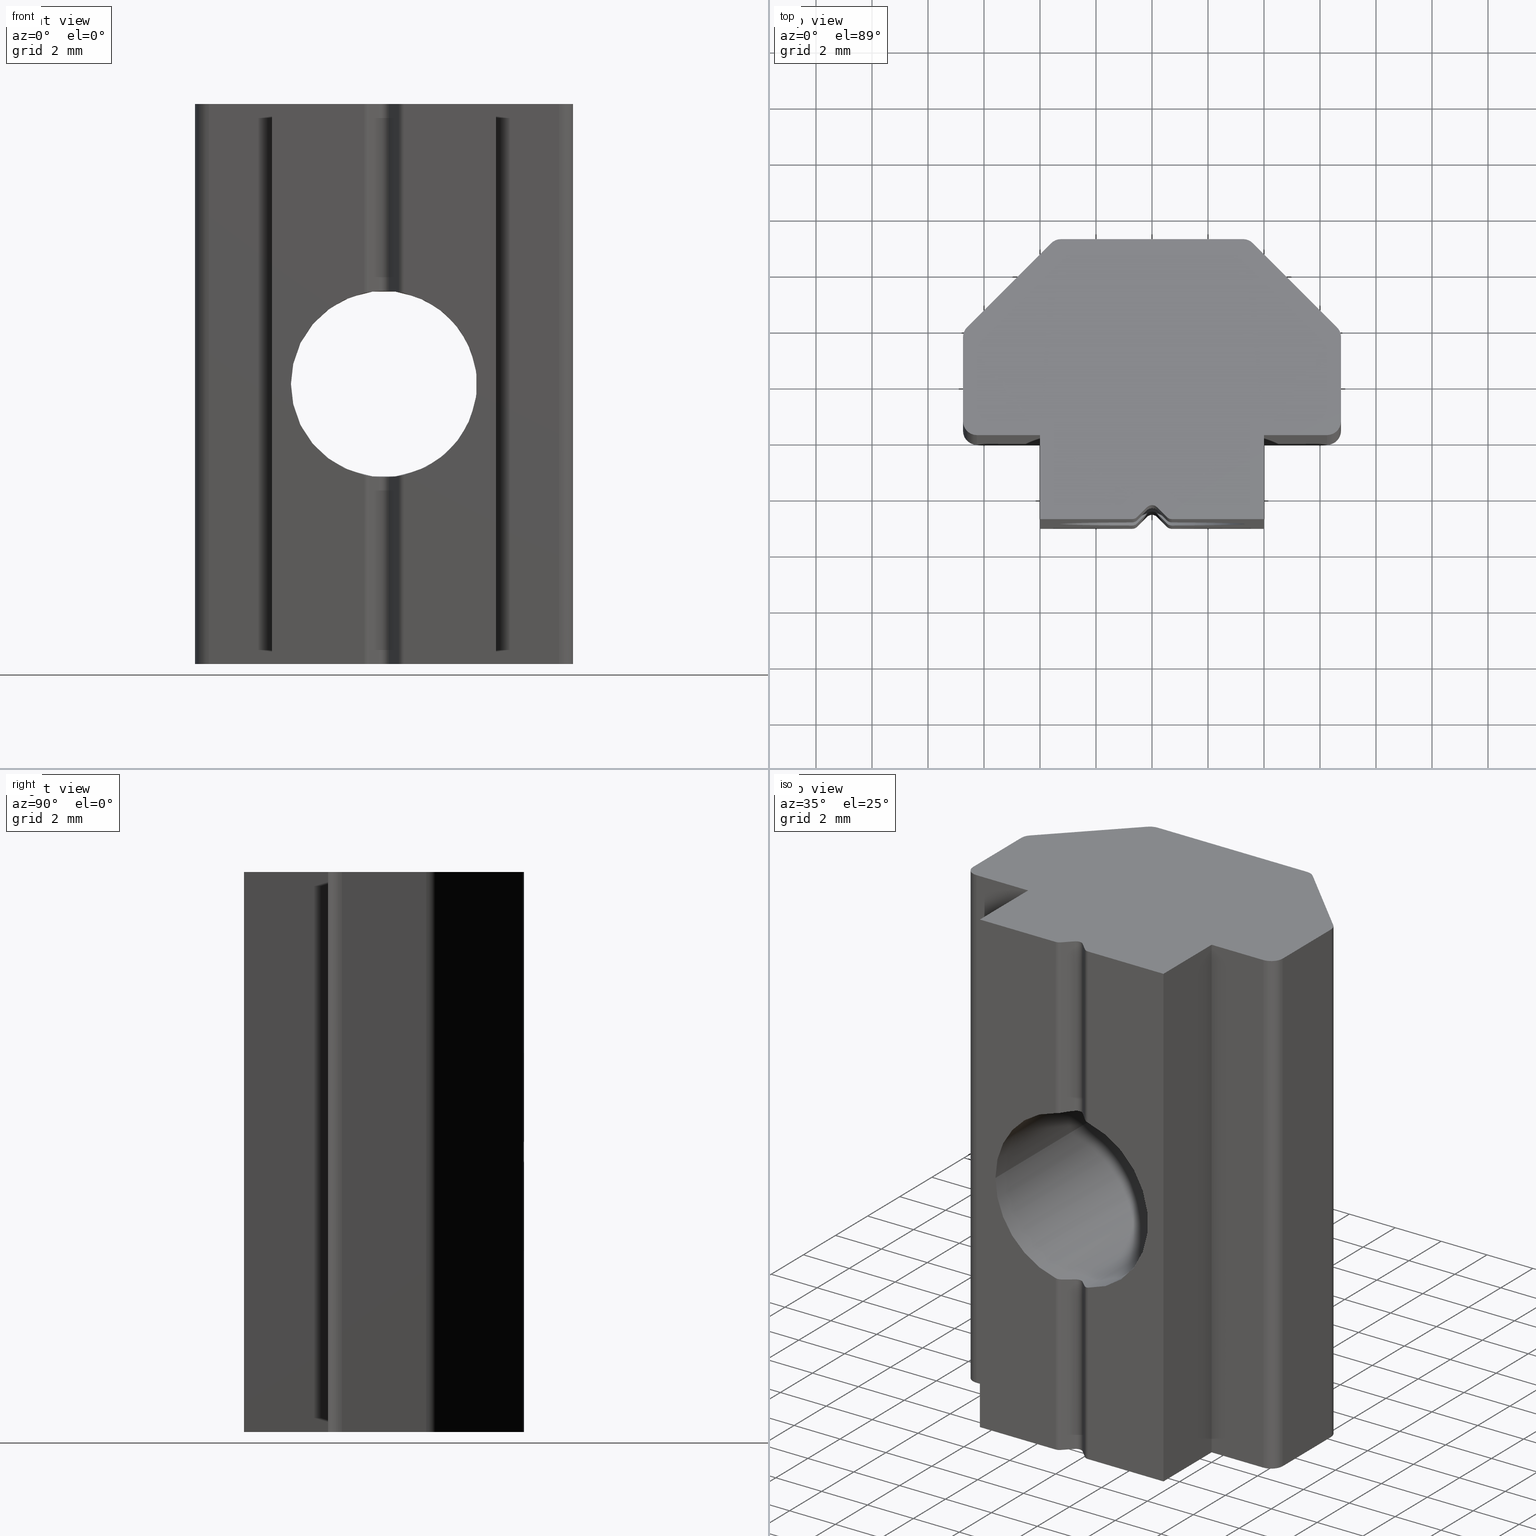
[diagram: canonical four-view strip — front | top / right | iso, engineering-drawing reading convention]
A machine part, canonical four-view strip (front | top / right | iso — engineering-drawing reading convention). The complete STEP part file that produces these views, byte-faithful:
ISO-10303-21;
HEADER;
/* Generated by software containing ST-Developer
 * from STEP Tools, Inc. (www.steptools.com) 
 */

FILE_DESCRIPTION(
/* description */ ('CURSORE M8 13.5x20 CAVA8 '),
/* implementation_level */ '2;1');

FILE_NAME(
/* name */ 
'Q:\\Catalogo\\2_Accessori Dierre\\Per Download Web e catalogo cartace
o\\CATALOGO ELEMENTI ASSEMBLAGGIO\\PAGINA 13\\DDDCU0000099.stp',
/* time_stamp */ '2019-10-28T18:36:49+01:00',
/* author */ ('fzagni'),
/* organization */ (''),
/* preprocessor_version */ 'ST-DEVELOPER v17.2',
/* originating_system */ 'Autodesk Inventor 2019',
/* authorisation */ '');

FILE_SCHEMA (('AUTOMOTIVE_DESIGN { 1 0 10303 214 3 1 1 }'));
ENDSEC;

DATA;
#10=MECHANICAL_DESIGN_GEOMETRIC_PRESENTATION_REPRESENTATION('',(#13),#1130);
#11=SHAPE_REPRESENTATION_RELATIONSHIP('SRR','None',#1137,#12);
#12=ADVANCED_BREP_SHAPE_REPRESENTATION('',(#14),#1129);
#13=STYLED_ITEM('',(#1146),#14);
#14=MANIFOLD_SOLID_BREP('Solido1',#630);
#15=PLANE('',#662);
#16=PLANE('',#663);
#17=PLANE('',#672);
#18=PLANE('',#673);
#19=PLANE('',#677);
#20=PLANE('',#680);
#21=PLANE('',#681);
#22=PLANE('',#682);
#23=PLANE('',#688);
#24=PLANE('',#689);
#25=PLANE('',#690);
#26=PLANE('',#693);
#27=PLANE('',#696);
#28=PLANE('',#699);
#29=PLANE('',#700);
#30=PLANE('',#703);
#31=PLANE('',#706);
#32=PLANE('',#707);
#33=FACE_OUTER_BOUND('',#64,.T.);
#34=FACE_OUTER_BOUND('',#65,.T.);
#35=FACE_OUTER_BOUND('',#66,.T.);
#36=FACE_OUTER_BOUND('',#67,.T.);
#37=FACE_OUTER_BOUND('',#68,.T.);
#38=FACE_OUTER_BOUND('',#69,.T.);
#39=FACE_OUTER_BOUND('',#70,.T.);
#40=FACE_OUTER_BOUND('',#71,.T.);
#41=FACE_OUTER_BOUND('',#72,.T.);
#42=FACE_OUTER_BOUND('',#73,.T.);
#43=FACE_OUTER_BOUND('',#74,.T.);
#44=FACE_OUTER_BOUND('',#75,.T.);
#45=FACE_OUTER_BOUND('',#76,.T.);
#46=FACE_OUTER_BOUND('',#77,.T.);
#47=FACE_OUTER_BOUND('',#78,.T.);
#48=FACE_OUTER_BOUND('',#79,.T.);
#49=FACE_OUTER_BOUND('',#80,.T.);
#50=FACE_OUTER_BOUND('',#81,.T.);
#51=FACE_OUTER_BOUND('',#82,.T.);
#52=FACE_OUTER_BOUND('',#83,.T.);
#53=FACE_OUTER_BOUND('',#84,.T.);
#54=FACE_OUTER_BOUND('',#85,.T.);
#55=FACE_OUTER_BOUND('',#86,.T.);
#56=FACE_OUTER_BOUND('',#87,.T.);
#57=FACE_OUTER_BOUND('',#88,.T.);
#58=FACE_OUTER_BOUND('',#89,.T.);
#59=FACE_OUTER_BOUND('',#90,.T.);
#60=FACE_OUTER_BOUND('',#91,.T.);
#61=FACE_OUTER_BOUND('',#92,.T.);
#62=FACE_OUTER_BOUND('',#93,.T.);
#63=FACE_OUTER_BOUND('',#94,.T.);
#64=EDGE_LOOP('',(#400,#401,#402,#403,#404,#405,#406,#407,#408,#409,#410,
#411,#412,#413,#414,#415,#416,#417,#418,#419));
#65=EDGE_LOOP('',(#420,#421,#422,#423));
#66=EDGE_LOOP('',(#424,#425,#426,#427,#428,#429));
#67=EDGE_LOOP('',(#430,#431,#432,#433));
#68=EDGE_LOOP('',(#434,#435,#436,#437));
#69=EDGE_LOOP('',(#438,#439,#440,#441));
#70=EDGE_LOOP('',(#442,#443,#444,#445));
#71=EDGE_LOOP('',(#446,#447,#448,#449));
#72=EDGE_LOOP('',(#450,#451,#452,#453));
#73=EDGE_LOOP('',(#454,#455,#456,#457));
#74=EDGE_LOOP('',(#458,#459,#460,#461,#462,#463));
#75=EDGE_LOOP('',(#464,#465,#466,#467));
#76=EDGE_LOOP('',(#468,#469,#470,#471));
#77=EDGE_LOOP('',(#472,#473,#474,#475));
#78=EDGE_LOOP('',(#476,#477,#478,#479,#480,#481,#482));
#79=EDGE_LOOP('',(#483,#484,#485,#486,#487,#488,#489,#490,#491,#492,#493,
#494,#495,#496,#497,#498,#499,#500,#501,#502,#503,#504));
#80=EDGE_LOOP('',(#505,#506,#507,#508));
#81=EDGE_LOOP('',(#509,#510,#511,#512));
#82=EDGE_LOOP('',(#513,#514,#515,#516));
#83=EDGE_LOOP('',(#517,#518,#519,#520));
#84=EDGE_LOOP('',(#521,#522,#523,#524));
#85=EDGE_LOOP('',(#525,#526,#527,#528));
#86=EDGE_LOOP('',(#529,#530,#531,#532));
#87=EDGE_LOOP('',(#533,#534,#535,#536,#537,#538,#539));
#88=EDGE_LOOP('',(#540,#541,#542,#543));
#89=EDGE_LOOP('',(#544,#545,#546,#547));
#90=EDGE_LOOP('',(#548,#549,#550,#551));
#91=EDGE_LOOP('',(#552,#553,#554,#555));
#92=EDGE_LOOP('',(#556,#557,#558,#559));
#93=EDGE_LOOP('',(#560,#561,#562,#563));
#94=EDGE_LOOP('',(#564,#565,#566,#567,#568,#569,#570,#571,#572,#573,#574,
#575,#576,#577,#578,#579,#580,#581,#582,#583,#584,#585));
#95=ELLIPSE('',#653,4.70013877454698,3.3235);
#96=ELLIPSE('',#654,4.700138774547,3.3235);
#97=ELLIPSE('',#656,4.700138774547,3.3235);
#98=ELLIPSE('',#657,4.70013877454698,3.3235);
#99=LINE('',#907,#156);
#100=LINE('',#981,#157);
#101=LINE('',#984,#158);
#102=LINE('',#987,#159);
#103=LINE('',#989,#160);
#104=LINE('',#991,#161);
#105=LINE('',#993,#162);
#106=LINE('',#994,#163);
#107=LINE('',#997,#164);
#108=LINE('',#998,#165);
#109=LINE('',#1002,#166);
#110=LINE('',#1005,#167);
#111=LINE('',#1008,#168);
#112=LINE('',#1011,#169);
#113=LINE('',#1016,#170);
#114=LINE('',#1018,#171);
#115=LINE('',#1020,#172);
#116=LINE('',#1023,#173);
#117=LINE('',#1027,#174);
#118=LINE('',#1030,#175);
#119=LINE('',#1033,#176);
#120=LINE('',#1034,#177);
#121=LINE('',#1037,#178);
#122=LINE('',#1040,#179);
#123=LINE('',#1042,#180);
#124=LINE('',#1045,#181);
#125=LINE('',#1047,#182);
#126=LINE('',#1048,#183);
#127=LINE('',#1051,#184);
#128=LINE('',#1053,#185);
#129=LINE('',#1057,#186);
#130=LINE('',#1061,#187);
#131=LINE('',#1064,#188);
#132=LINE('',#1066,#189);
#133=LINE('',#1070,#190);
#134=LINE('',#1074,#191);
#135=LINE('',#1075,#192);
#136=LINE('',#1078,#193);
#137=LINE('',#1079,#194);
#138=LINE('',#1082,#195);
#139=LINE('',#1083,#196);
#140=LINE('',#1086,#197);
#141=LINE('',#1087,#198);
#142=LINE('',#1091,#199);
#143=LINE('',#1094,#200);
#144=LINE('',#1095,#201);
#145=LINE('',#1099,#202);
#146=LINE('',#1102,#203);
#147=LINE('',#1103,#204);
#148=LINE('',#1105,#205);
#149=LINE('',#1110,#206);
#150=LINE('',#1111,#207);
#151=LINE('',#1115,#208);
#152=LINE('',#1118,#209);
#153=LINE('',#1119,#210);
#154=LINE('',#1123,#211);
#155=LINE('',#1125,#212);
#156=VECTOR('',#714,3.3235);
#157=VECTOR('',#733,10.);
#158=VECTOR('',#736,10.);
#159=VECTOR('',#739,10.);
#160=VECTOR('',#740,10.);
#161=VECTOR('',#741,10.);
#162=VECTOR('',#742,10.);
#163=VECTOR('',#743,10.);
#164=VECTOR('',#746,10.);
#165=VECTOR('',#747,10.);
#166=VECTOR('',#752,10.);
#167=VECTOR('',#755,10.);
#168=VECTOR('',#758,10.);
#169=VECTOR('',#761,10.);
#170=VECTOR('',#768,10.);
#171=VECTOR('',#771,10.);
#172=VECTOR('',#774,10.);
#173=VECTOR('',#777,10.);
#174=VECTOR('',#780,10.);
#175=VECTOR('',#783,10.);
#176=VECTOR('',#786,10.);
#177=VECTOR('',#787,10.);
#178=VECTOR('',#790,10.);
#179=VECTOR('',#793,10.);
#180=VECTOR('',#796,10.);
#181=VECTOR('',#799,10.);
#182=VECTOR('',#800,10.);
#183=VECTOR('',#801,10.);
#184=VECTOR('',#804,10.);
#185=VECTOR('',#805,10.);
#186=VECTOR('',#808,10.);
#187=VECTOR('',#811,10.);
#188=VECTOR('',#814,10.);
#189=VECTOR('',#815,10.);
#190=VECTOR('',#818,10.);
#191=VECTOR('',#821,10.);
#192=VECTOR('',#822,10.);
#193=VECTOR('',#825,10.);
#194=VECTOR('',#826,10.);
#195=VECTOR('',#829,10.);
#196=VECTOR('',#830,10.);
#197=VECTOR('',#833,10.);
#198=VECTOR('',#834,10.);
#199=VECTOR('',#839,10.);
#200=VECTOR('',#842,10.);
#201=VECTOR('',#843,10.);
#202=VECTOR('',#848,10.);
#203=VECTOR('',#851,10.);
#204=VECTOR('',#852,10.);
#205=VECTOR('',#855,10.);
#206=VECTOR('',#862,10.);
#207=VECTOR('',#863,10.);
#208=VECTOR('',#868,10.);
#209=VECTOR('',#871,10.);
#210=VECTOR('',#872,10.);
#211=VECTOR('',#877,10.);
#212=VECTOR('',#880,10.);
#213=CIRCLE('',#651,3.3235);
#214=CIRCLE('',#652,3.3235);
#215=CIRCLE('',#655,3.3235);
#216=CIRCLE('',#658,3.3235);
#217=CIRCLE('',#659,3.3235);
#218=CIRCLE('',#661,0.25);
#219=CIRCLE('',#665,0.25);
#220=CIRCLE('',#667,0.25);
#221=CIRCLE('',#669,0.249999999999999);
#222=CIRCLE('',#671,0.249999999999999);
#223=CIRCLE('',#675,0.5);
#224=CIRCLE('',#676,0.5);
#225=CIRCLE('',#679,0.25);
#226=CIRCLE('',#683,0.499999999999999);
#227=CIRCLE('',#684,0.500000000000005);
#228=CIRCLE('',#685,0.499999999999994);
#229=CIRCLE('',#686,0.500000000000001);
#230=CIRCLE('',#687,0.499999999999999);
#231=CIRCLE('',#692,0.499999999999999);
#232=CIRCLE('',#695,0.500000000000005);
#233=CIRCLE('',#698,0.499999999999994);
#234=CIRCLE('',#702,0.500000000000001);
#235=CIRCLE('',#705,0.499999999999999);
#236=B_SPLINE_CURVE_WITH_KNOTS('',3,(#887,#888,#889,#890,#891,#892,#893,
#894,#895,#896),.UNSPECIFIED.,.F.,.F.,(4,2,2,2,4),(0.557830113279134,0.56436971978981,
0.623735461965952,0.683101204142094,0.68964081065277),.UNSPECIFIED.);
#237=B_SPLINE_CURVE_WITH_KNOTS('',3,(#900,#901,#902,#903,#904,#905),
 .UNSPECIFIED.,.F.,.F.,(4,2,4),(0.623735461965948,0.68310120414209,0.689640810652766),
 .UNSPECIFIED.);
#238=B_SPLINE_CURVE_WITH_KNOTS('',3,(#911,#912,#913,#914,#915,#916),
 .UNSPECIFIED.,.F.,.F.,(4,2,4),(0.0188806929850489,0.0283989010106326,0.0379905181382332),
 .UNSPECIFIED.);
#239=B_SPLINE_CURVE_WITH_KNOTS('',3,(#920,#921,#922,#923,#924,#925,#926,
#927,#928,#929),.UNSPECIFIED.,.F.,.F.,(4,2,2,2,4),(0.0188419814772389,0.0282629619908554,
0.0376839425044719,0.0471049230180884,0.056525903531705),.UNSPECIFIED.);
#240=B_SPLINE_CURVE_WITH_KNOTS('',3,(#933,#934,#935,#936,#937,#938),
 .UNSPECIFIED.,.F.,.F.,(4,2,4),(0.0382703114742954,0.0478619286018959,0.0573801366274796),
 .UNSPECIFIED.);
#241=B_SPLINE_CURVE_WITH_KNOTS('',3,(#942,#943,#944,#945,#946,#947),
 .UNSPECIFIED.,.F.,.F.,(4,2,4),(0.0951415408329882,0.104659748858572,0.114251365986172),
 .UNSPECIFIED.);
#242=B_SPLINE_CURVE_WITH_KNOTS('',3,(#951,#952,#953,#954,#955,#956,#957,
#958,#959,#960),.UNSPECIFIED.,.F.,.F.,(4,2,2,2,4),(0.0942098664861825,0.103630846999799,
0.113051827513416,0.122472808027032,0.131893788540649),.UNSPECIFIED.);
#243=B_SPLINE_CURVE_WITH_KNOTS('',3,(#964,#965,#966,#967,#968,#969),
 .UNSPECIFIED.,.F.,.F.,(4,2,4),(0.114531412718414,0.124123029846015,0.133641237871599),
 .UNSPECIFIED.);
#244=B_SPLINE_CURVE_WITH_KNOTS('',3,(#972,#973,#974,#975,#976,#977),
 .UNSPECIFIED.,.F.,.F.,(4,2,4),(0.557830113279131,0.564369719789807,0.623735461965948),
 .UNSPECIFIED.);
#245=VERTEX_POINT('',#885);
#246=VERTEX_POINT('',#886);
#247=VERTEX_POINT('',#897);
#248=VERTEX_POINT('',#899);
#249=VERTEX_POINT('',#906);
#250=VERTEX_POINT('',#908);
#251=VERTEX_POINT('',#910);
#252=VERTEX_POINT('',#917);
#253=VERTEX_POINT('',#919);
#254=VERTEX_POINT('',#930);
#255=VERTEX_POINT('',#932);
#256=VERTEX_POINT('',#939);
#257=VERTEX_POINT('',#941);
#258=VERTEX_POINT('',#948);
#259=VERTEX_POINT('',#950);
#260=VERTEX_POINT('',#961);
#261=VERTEX_POINT('',#963);
#262=VERTEX_POINT('',#971);
#263=VERTEX_POINT('',#980);
#264=VERTEX_POINT('',#982);
#265=VERTEX_POINT('',#986);
#266=VERTEX_POINT('',#988);
#267=VERTEX_POINT('',#990);
#268=VERTEX_POINT('',#992);
#269=VERTEX_POINT('',#996);
#270=VERTEX_POINT('',#1000);
#271=VERTEX_POINT('',#1004);
#272=VERTEX_POINT('',#1006);
#273=VERTEX_POINT('',#1010);
#274=VERTEX_POINT('',#1014);
#275=VERTEX_POINT('',#1022);
#276=VERTEX_POINT('',#1024);
#277=VERTEX_POINT('',#1026);
#278=VERTEX_POINT('',#1028);
#279=VERTEX_POINT('',#1032);
#280=VERTEX_POINT('',#1036);
#281=VERTEX_POINT('',#1038);
#282=VERTEX_POINT('',#1044);
#283=VERTEX_POINT('',#1046);
#284=VERTEX_POINT('',#1050);
#285=VERTEX_POINT('',#1052);
#286=VERTEX_POINT('',#1054);
#287=VERTEX_POINT('',#1056);
#288=VERTEX_POINT('',#1058);
#289=VERTEX_POINT('',#1060);
#290=VERTEX_POINT('',#1062);
#291=VERTEX_POINT('',#1065);
#292=VERTEX_POINT('',#1067);
#293=VERTEX_POINT('',#1069);
#294=VERTEX_POINT('',#1071);
#295=VERTEX_POINT('',#1073);
#296=VERTEX_POINT('',#1077);
#297=VERTEX_POINT('',#1081);
#298=VERTEX_POINT('',#1085);
#299=VERTEX_POINT('',#1089);
#300=VERTEX_POINT('',#1093);
#301=VERTEX_POINT('',#1097);
#302=VERTEX_POINT('',#1101);
#303=VERTEX_POINT('',#1109);
#304=VERTEX_POINT('',#1113);
#305=VERTEX_POINT('',#1117);
#306=VERTEX_POINT('',#1121);
#307=EDGE_CURVE('',#245,#246,#236,.T.);
#308=EDGE_CURVE('',#247,#245,#213,.T.);
#309=EDGE_CURVE('',#248,#247,#237,.T.);
#310=EDGE_CURVE('',#248,#249,#99,.T.);
#311=EDGE_CURVE('',#250,#249,#214,.T.);
#312=EDGE_CURVE('',#251,#250,#238,.T.);
#313=EDGE_CURVE('',#252,#251,#95,.T.);
#314=EDGE_CURVE('',#253,#252,#239,.T.);
#315=EDGE_CURVE('',#254,#253,#96,.T.);
#316=EDGE_CURVE('',#255,#254,#240,.T.);
#317=EDGE_CURVE('',#256,#255,#215,.T.);
#318=EDGE_CURVE('',#257,#256,#241,.T.);
#319=EDGE_CURVE('',#258,#257,#97,.T.);
#320=EDGE_CURVE('',#259,#258,#242,.T.);
#321=EDGE_CURVE('',#260,#259,#98,.T.);
#322=EDGE_CURVE('',#261,#260,#243,.T.);
#323=EDGE_CURVE('',#249,#261,#216,.T.);
#324=EDGE_CURVE('',#262,#248,#244,.T.);
#325=EDGE_CURVE('',#246,#262,#217,.T.);
#326=EDGE_CURVE('',#250,#263,#100,.T.);
#327=EDGE_CURVE('',#264,#263,#218,.T.);
#328=EDGE_CURVE('',#264,#251,#101,.T.);
#329=EDGE_CURVE('',#255,#265,#102,.T.);
#330=EDGE_CURVE('',#266,#265,#103,.T.);
#331=EDGE_CURVE('',#266,#267,#104,.T.);
#332=EDGE_CURVE('',#268,#267,#105,.T.);
#333=EDGE_CURVE('',#268,#256,#106,.T.);
#334=EDGE_CURVE('',#269,#264,#107,.T.);
#335=EDGE_CURVE('',#269,#252,#108,.T.);
#336=EDGE_CURVE('',#270,#269,#219,.T.);
#337=EDGE_CURVE('',#270,#253,#109,.T.);
#338=EDGE_CURVE('',#258,#271,#110,.T.);
#339=EDGE_CURVE('',#272,#271,#220,.T.);
#340=EDGE_CURVE('',#259,#272,#111,.T.);
#341=EDGE_CURVE('',#273,#254,#112,.T.);
#342=EDGE_CURVE('',#265,#273,#221,.T.);
#343=EDGE_CURVE('',#274,#268,#222,.T.);
#344=EDGE_CURVE('',#257,#274,#113,.T.);
#345=EDGE_CURVE('',#273,#270,#114,.T.);
#346=EDGE_CURVE('',#271,#274,#115,.T.);
#347=EDGE_CURVE('',#246,#275,#116,.T.);
#348=EDGE_CURVE('',#276,#275,#223,.T.);
#349=EDGE_CURVE('',#277,#276,#117,.T.);
#350=EDGE_CURVE('',#278,#277,#224,.T.);
#351=EDGE_CURVE('',#278,#245,#118,.T.);
#352=EDGE_CURVE('',#262,#279,#119,.T.);
#353=EDGE_CURVE('',#275,#279,#120,.T.);
#354=EDGE_CURVE('',#260,#280,#121,.T.);
#355=EDGE_CURVE('',#281,#280,#225,.T.);
#356=EDGE_CURVE('',#281,#261,#122,.T.);
#357=EDGE_CURVE('',#280,#272,#123,.T.);
#358=EDGE_CURVE('',#282,#281,#124,.T.);
#359=EDGE_CURVE('',#283,#282,#125,.T.);
#360=EDGE_CURVE('',#263,#283,#126,.T.);
#361=EDGE_CURVE('',#283,#284,#127,.T.);
#362=EDGE_CURVE('',#284,#285,#128,.T.);
#363=EDGE_CURVE('',#285,#286,#226,.T.);
#364=EDGE_CURVE('',#286,#287,#129,.T.);
#365=EDGE_CURVE('',#287,#288,#227,.T.);
#366=EDGE_CURVE('',#288,#289,#130,.T.);
#367=EDGE_CURVE('',#289,#290,#228,.T.);
#368=EDGE_CURVE('',#290,#278,#131,.T.);
#369=EDGE_CURVE('',#277,#291,#132,.T.);
#370=EDGE_CURVE('',#291,#292,#229,.T.);
#371=EDGE_CURVE('',#292,#293,#133,.T.);
#372=EDGE_CURVE('',#293,#294,#230,.T.);
#373=EDGE_CURVE('',#294,#295,#134,.T.);
#374=EDGE_CURVE('',#295,#266,#135,.T.);
#375=EDGE_CURVE('',#296,#295,#136,.T.);
#376=EDGE_CURVE('',#267,#296,#137,.T.);
#377=EDGE_CURVE('',#297,#282,#138,.T.);
#378=EDGE_CURVE('',#284,#297,#139,.T.);
#379=EDGE_CURVE('',#298,#297,#140,.T.);
#380=EDGE_CURVE('',#285,#298,#141,.T.);
#381=EDGE_CURVE('',#299,#298,#231,.T.);
#382=EDGE_CURVE('',#286,#299,#142,.T.);
#383=EDGE_CURVE('',#300,#299,#143,.T.);
#384=EDGE_CURVE('',#287,#300,#144,.T.);
#385=EDGE_CURVE('',#301,#300,#232,.T.);
#386=EDGE_CURVE('',#288,#301,#145,.T.);
#387=EDGE_CURVE('',#302,#301,#146,.T.);
#388=EDGE_CURVE('',#289,#302,#147,.T.);
#389=EDGE_CURVE('',#290,#247,#148,.T.);
#390=EDGE_CURVE('',#279,#302,#233,.T.);
#391=EDGE_CURVE('',#303,#276,#149,.T.);
#392=EDGE_CURVE('',#291,#303,#150,.T.);
#393=EDGE_CURVE('',#304,#303,#234,.T.);
#394=EDGE_CURVE('',#292,#304,#151,.T.);
#395=EDGE_CURVE('',#305,#304,#152,.T.);
#396=EDGE_CURVE('',#293,#305,#153,.T.);
#397=EDGE_CURVE('',#306,#305,#235,.T.);
#398=EDGE_CURVE('',#294,#306,#154,.T.);
#399=EDGE_CURVE('',#296,#306,#155,.T.);
#400=ORIENTED_EDGE('',*,*,#307,.F.);
#401=ORIENTED_EDGE('',*,*,#308,.F.);
#402=ORIENTED_EDGE('',*,*,#309,.F.);
#403=ORIENTED_EDGE('',*,*,#310,.T.);
#404=ORIENTED_EDGE('',*,*,#311,.F.);
#405=ORIENTED_EDGE('',*,*,#312,.F.);
#406=ORIENTED_EDGE('',*,*,#313,.F.);
#407=ORIENTED_EDGE('',*,*,#314,.F.);
#408=ORIENTED_EDGE('',*,*,#315,.F.);
#409=ORIENTED_EDGE('',*,*,#316,.F.);
#410=ORIENTED_EDGE('',*,*,#317,.F.);
#411=ORIENTED_EDGE('',*,*,#318,.F.);
#412=ORIENTED_EDGE('',*,*,#319,.F.);
#413=ORIENTED_EDGE('',*,*,#320,.F.);
#414=ORIENTED_EDGE('',*,*,#321,.F.);
#415=ORIENTED_EDGE('',*,*,#322,.F.);
#416=ORIENTED_EDGE('',*,*,#323,.F.);
#417=ORIENTED_EDGE('',*,*,#310,.F.);
#418=ORIENTED_EDGE('',*,*,#324,.F.);
#419=ORIENTED_EDGE('',*,*,#325,.F.);
#420=ORIENTED_EDGE('',*,*,#312,.T.);
#421=ORIENTED_EDGE('',*,*,#326,.T.);
#422=ORIENTED_EDGE('',*,*,#327,.F.);
#423=ORIENTED_EDGE('',*,*,#328,.T.);
#424=ORIENTED_EDGE('',*,*,#317,.T.);
#425=ORIENTED_EDGE('',*,*,#329,.T.);
#426=ORIENTED_EDGE('',*,*,#330,.F.);
#427=ORIENTED_EDGE('',*,*,#331,.T.);
#428=ORIENTED_EDGE('',*,*,#332,.F.);
#429=ORIENTED_EDGE('',*,*,#333,.T.);
#430=ORIENTED_EDGE('',*,*,#313,.T.);
#431=ORIENTED_EDGE('',*,*,#328,.F.);
#432=ORIENTED_EDGE('',*,*,#334,.F.);
#433=ORIENTED_EDGE('',*,*,#335,.T.);
#434=ORIENTED_EDGE('',*,*,#314,.T.);
#435=ORIENTED_EDGE('',*,*,#335,.F.);
#436=ORIENTED_EDGE('',*,*,#336,.F.);
#437=ORIENTED_EDGE('',*,*,#337,.T.);
#438=ORIENTED_EDGE('',*,*,#320,.T.);
#439=ORIENTED_EDGE('',*,*,#338,.T.);
#440=ORIENTED_EDGE('',*,*,#339,.F.);
#441=ORIENTED_EDGE('',*,*,#340,.F.);
#442=ORIENTED_EDGE('',*,*,#316,.T.);
#443=ORIENTED_EDGE('',*,*,#341,.F.);
#444=ORIENTED_EDGE('',*,*,#342,.F.);
#445=ORIENTED_EDGE('',*,*,#329,.F.);
#446=ORIENTED_EDGE('',*,*,#318,.T.);
#447=ORIENTED_EDGE('',*,*,#333,.F.);
#448=ORIENTED_EDGE('',*,*,#343,.F.);
#449=ORIENTED_EDGE('',*,*,#344,.F.);
#450=ORIENTED_EDGE('',*,*,#315,.T.);
#451=ORIENTED_EDGE('',*,*,#337,.F.);
#452=ORIENTED_EDGE('',*,*,#345,.F.);
#453=ORIENTED_EDGE('',*,*,#341,.T.);
#454=ORIENTED_EDGE('',*,*,#319,.T.);
#455=ORIENTED_EDGE('',*,*,#344,.T.);
#456=ORIENTED_EDGE('',*,*,#346,.F.);
#457=ORIENTED_EDGE('',*,*,#338,.F.);
#458=ORIENTED_EDGE('',*,*,#307,.T.);
#459=ORIENTED_EDGE('',*,*,#347,.T.);
#460=ORIENTED_EDGE('',*,*,#348,.F.);
#461=ORIENTED_EDGE('',*,*,#349,.F.);
#462=ORIENTED_EDGE('',*,*,#350,.F.);
#463=ORIENTED_EDGE('',*,*,#351,.T.);
#464=ORIENTED_EDGE('',*,*,#325,.T.);
#465=ORIENTED_EDGE('',*,*,#352,.T.);
#466=ORIENTED_EDGE('',*,*,#353,.F.);
#467=ORIENTED_EDGE('',*,*,#347,.F.);
#468=ORIENTED_EDGE('',*,*,#322,.T.);
#469=ORIENTED_EDGE('',*,*,#354,.T.);
#470=ORIENTED_EDGE('',*,*,#355,.F.);
#471=ORIENTED_EDGE('',*,*,#356,.T.);
#472=ORIENTED_EDGE('',*,*,#321,.T.);
#473=ORIENTED_EDGE('',*,*,#340,.T.);
#474=ORIENTED_EDGE('',*,*,#357,.F.);
#475=ORIENTED_EDGE('',*,*,#354,.F.);
#476=ORIENTED_EDGE('',*,*,#311,.T.);
#477=ORIENTED_EDGE('',*,*,#323,.T.);
#478=ORIENTED_EDGE('',*,*,#356,.F.);
#479=ORIENTED_EDGE('',*,*,#358,.F.);
#480=ORIENTED_EDGE('',*,*,#359,.F.);
#481=ORIENTED_EDGE('',*,*,#360,.F.);
#482=ORIENTED_EDGE('',*,*,#326,.F.);
#483=ORIENTED_EDGE('',*,*,#342,.T.);
#484=ORIENTED_EDGE('',*,*,#345,.T.);
#485=ORIENTED_EDGE('',*,*,#336,.T.);
#486=ORIENTED_EDGE('',*,*,#334,.T.);
#487=ORIENTED_EDGE('',*,*,#327,.T.);
#488=ORIENTED_EDGE('',*,*,#360,.T.);
#489=ORIENTED_EDGE('',*,*,#361,.T.);
#490=ORIENTED_EDGE('',*,*,#362,.T.);
#491=ORIENTED_EDGE('',*,*,#363,.T.);
#492=ORIENTED_EDGE('',*,*,#364,.T.);
#493=ORIENTED_EDGE('',*,*,#365,.T.);
#494=ORIENTED_EDGE('',*,*,#366,.T.);
#495=ORIENTED_EDGE('',*,*,#367,.T.);
#496=ORIENTED_EDGE('',*,*,#368,.T.);
#497=ORIENTED_EDGE('',*,*,#350,.T.);
#498=ORIENTED_EDGE('',*,*,#369,.T.);
#499=ORIENTED_EDGE('',*,*,#370,.T.);
#500=ORIENTED_EDGE('',*,*,#371,.T.);
#501=ORIENTED_EDGE('',*,*,#372,.T.);
#502=ORIENTED_EDGE('',*,*,#373,.T.);
#503=ORIENTED_EDGE('',*,*,#374,.T.);
#504=ORIENTED_EDGE('',*,*,#330,.T.);
#505=ORIENTED_EDGE('',*,*,#375,.F.);
#506=ORIENTED_EDGE('',*,*,#376,.F.);
#507=ORIENTED_EDGE('',*,*,#331,.F.);
#508=ORIENTED_EDGE('',*,*,#374,.F.);
#509=ORIENTED_EDGE('',*,*,#359,.T.);
#510=ORIENTED_EDGE('',*,*,#377,.F.);
#511=ORIENTED_EDGE('',*,*,#378,.F.);
#512=ORIENTED_EDGE('',*,*,#361,.F.);
#513=ORIENTED_EDGE('',*,*,#378,.T.);
#514=ORIENTED_EDGE('',*,*,#379,.F.);
#515=ORIENTED_EDGE('',*,*,#380,.F.);
#516=ORIENTED_EDGE('',*,*,#362,.F.);
#517=ORIENTED_EDGE('',*,*,#380,.T.);
#518=ORIENTED_EDGE('',*,*,#381,.F.);
#519=ORIENTED_EDGE('',*,*,#382,.F.);
#520=ORIENTED_EDGE('',*,*,#363,.F.);
#521=ORIENTED_EDGE('',*,*,#382,.T.);
#522=ORIENTED_EDGE('',*,*,#383,.F.);
#523=ORIENTED_EDGE('',*,*,#384,.F.);
#524=ORIENTED_EDGE('',*,*,#364,.F.);
#525=ORIENTED_EDGE('',*,*,#384,.T.);
#526=ORIENTED_EDGE('',*,*,#385,.F.);
#527=ORIENTED_EDGE('',*,*,#386,.F.);
#528=ORIENTED_EDGE('',*,*,#365,.F.);
#529=ORIENTED_EDGE('',*,*,#386,.T.);
#530=ORIENTED_EDGE('',*,*,#387,.F.);
#531=ORIENTED_EDGE('',*,*,#388,.F.);
#532=ORIENTED_EDGE('',*,*,#366,.F.);
#533=ORIENTED_EDGE('',*,*,#324,.T.);
#534=ORIENTED_EDGE('',*,*,#309,.T.);
#535=ORIENTED_EDGE('',*,*,#389,.F.);
#536=ORIENTED_EDGE('',*,*,#367,.F.);
#537=ORIENTED_EDGE('',*,*,#388,.T.);
#538=ORIENTED_EDGE('',*,*,#390,.F.);
#539=ORIENTED_EDGE('',*,*,#352,.F.);
#540=ORIENTED_EDGE('',*,*,#308,.T.);
#541=ORIENTED_EDGE('',*,*,#351,.F.);
#542=ORIENTED_EDGE('',*,*,#368,.F.);
#543=ORIENTED_EDGE('',*,*,#389,.T.);
#544=ORIENTED_EDGE('',*,*,#349,.T.);
#545=ORIENTED_EDGE('',*,*,#391,.F.);
#546=ORIENTED_EDGE('',*,*,#392,.F.);
#547=ORIENTED_EDGE('',*,*,#369,.F.);
#548=ORIENTED_EDGE('',*,*,#392,.T.);
#549=ORIENTED_EDGE('',*,*,#393,.F.);
#550=ORIENTED_EDGE('',*,*,#394,.F.);
#551=ORIENTED_EDGE('',*,*,#370,.F.);
#552=ORIENTED_EDGE('',*,*,#394,.T.);
#553=ORIENTED_EDGE('',*,*,#395,.F.);
#554=ORIENTED_EDGE('',*,*,#396,.F.);
#555=ORIENTED_EDGE('',*,*,#371,.F.);
#556=ORIENTED_EDGE('',*,*,#396,.T.);
#557=ORIENTED_EDGE('',*,*,#397,.F.);
#558=ORIENTED_EDGE('',*,*,#398,.F.);
#559=ORIENTED_EDGE('',*,*,#372,.F.);
#560=ORIENTED_EDGE('',*,*,#398,.T.);
#561=ORIENTED_EDGE('',*,*,#399,.F.);
#562=ORIENTED_EDGE('',*,*,#375,.T.);
#563=ORIENTED_EDGE('',*,*,#373,.F.);
#564=ORIENTED_EDGE('',*,*,#343,.T.);
#565=ORIENTED_EDGE('',*,*,#332,.T.);
#566=ORIENTED_EDGE('',*,*,#376,.T.);
#567=ORIENTED_EDGE('',*,*,#399,.T.);
#568=ORIENTED_EDGE('',*,*,#397,.T.);
#569=ORIENTED_EDGE('',*,*,#395,.T.);
#570=ORIENTED_EDGE('',*,*,#393,.T.);
#571=ORIENTED_EDGE('',*,*,#391,.T.);
#572=ORIENTED_EDGE('',*,*,#348,.T.);
#573=ORIENTED_EDGE('',*,*,#353,.T.);
#574=ORIENTED_EDGE('',*,*,#390,.T.);
#575=ORIENTED_EDGE('',*,*,#387,.T.);
#576=ORIENTED_EDGE('',*,*,#385,.T.);
#577=ORIENTED_EDGE('',*,*,#383,.T.);
#578=ORIENTED_EDGE('',*,*,#381,.T.);
#579=ORIENTED_EDGE('',*,*,#379,.T.);
#580=ORIENTED_EDGE('',*,*,#377,.T.);
#581=ORIENTED_EDGE('',*,*,#358,.T.);
#582=ORIENTED_EDGE('',*,*,#355,.T.);
#583=ORIENTED_EDGE('',*,*,#357,.T.);
#584=ORIENTED_EDGE('',*,*,#339,.T.);
#585=ORIENTED_EDGE('',*,*,#346,.T.);
#586=CYLINDRICAL_SURFACE('',#650,3.3235);
#587=CYLINDRICAL_SURFACE('',#660,0.25);
#588=CYLINDRICAL_SURFACE('',#664,0.25);
#589=CYLINDRICAL_SURFACE('',#666,0.25);
#590=CYLINDRICAL_SURFACE('',#668,0.249999999999999);
#591=CYLINDRICAL_SURFACE('',#670,0.249999999999999);
#592=CYLINDRICAL_SURFACE('',#674,0.5);
#593=CYLINDRICAL_SURFACE('',#678,0.25);
#594=CYLINDRICAL_SURFACE('',#691,0.499999999999999);
#595=CYLINDRICAL_SURFACE('',#694,0.500000000000005);
#596=CYLINDRICAL_SURFACE('',#697,0.499999999999994);
#597=CYLINDRICAL_SURFACE('',#701,0.500000000000001);
#598=CYLINDRICAL_SURFACE('',#704,0.499999999999999);
#599=ADVANCED_FACE('',(#33),#586,.F.);
#600=ADVANCED_FACE('',(#34),#587,.T.);
#601=ADVANCED_FACE('',(#35),#15,.T.);
#602=ADVANCED_FACE('',(#36),#16,.F.);
#603=ADVANCED_FACE('',(#37),#588,.F.);
#604=ADVANCED_FACE('',(#38),#589,.F.);
#605=ADVANCED_FACE('',(#39),#590,.T.);
#606=ADVANCED_FACE('',(#40),#591,.T.);
#607=ADVANCED_FACE('',(#41),#17,.F.);
#608=ADVANCED_FACE('',(#42),#18,.F.);
#609=ADVANCED_FACE('',(#43),#592,.T.);
#610=ADVANCED_FACE('',(#44),#19,.T.);
#611=ADVANCED_FACE('',(#45),#593,.T.);
#612=ADVANCED_FACE('',(#46),#20,.F.);
#613=ADVANCED_FACE('',(#47),#21,.T.);
#614=ADVANCED_FACE('',(#48),#22,.F.);
#615=ADVANCED_FACE('',(#49),#23,.T.);
#616=ADVANCED_FACE('',(#50),#24,.T.);
#617=ADVANCED_FACE('',(#51),#25,.T.);
#618=ADVANCED_FACE('',(#52),#594,.T.);
#619=ADVANCED_FACE('',(#53),#26,.T.);
#620=ADVANCED_FACE('',(#54),#595,.T.);
#621=ADVANCED_FACE('',(#55),#27,.T.);
#622=ADVANCED_FACE('',(#56),#596,.T.);
#623=ADVANCED_FACE('',(#57),#28,.T.);
#624=ADVANCED_FACE('',(#58),#29,.T.);
#625=ADVANCED_FACE('',(#59),#597,.T.);
#626=ADVANCED_FACE('',(#60),#30,.T.);
#627=ADVANCED_FACE('',(#61),#598,.T.);
#628=ADVANCED_FACE('',(#62),#31,.T.);
#629=ADVANCED_FACE('',(#63),#32,.T.);
#630=CLOSED_SHELL('',(#599,#600,#601,#602,#603,#604,#605,#606,#607,#608,
#609,#610,#611,#612,#613,#614,#615,#616,#617,#618,#619,#620,#621,#622,#623,
#624,#625,#626,#627,#628,#629));
#631=DERIVED_UNIT_ELEMENT(#633,1.);
#632=DERIVED_UNIT_ELEMENT(#1132,3.);
#633=(
MASS_UNIT()
NAMED_UNIT(*)
SI_UNIT($,.GRAM.)
);
#634=DERIVED_UNIT((#631,#632));
#635=MEASURE_REPRESENTATION_ITEM('density measure',
POSITIVE_RATIO_MEASURE(7.85),#634);
#636=PROPERTY_DEFINITION_REPRESENTATION(#641,#638);
#637=PROPERTY_DEFINITION_REPRESENTATION(#642,#639);
#638=REPRESENTATION('material name',(#640),#1129);
#639=REPRESENTATION('density',(#635),#1129);
#640=DESCRIPTIVE_REPRESENTATION_ITEM('Acciaio S235JR','Acciaio S235JR');
#641=PROPERTY_DEFINITION('material property','material name',#1139);
#642=PROPERTY_DEFINITION('material property','density of part',#1139);
#643=DATE_TIME_ROLE('creation_date');
#644=APPLIED_DATE_AND_TIME_ASSIGNMENT(#645,#643,(#1139));
#645=DATE_AND_TIME(#646,#647);
#646=CALENDAR_DATE(2019,28,10);
#647=LOCAL_TIME(17,1,7.,#648);
#648=COORDINATED_UNIVERSAL_TIME_OFFSET(0,0,.BEHIND.);
#649=AXIS2_PLACEMENT_3D('placement',#883,#708,#709);
#650=AXIS2_PLACEMENT_3D('',#884,#710,#711);
#651=AXIS2_PLACEMENT_3D('',#898,#712,#713);
#652=AXIS2_PLACEMENT_3D('',#909,#715,#716);
#653=AXIS2_PLACEMENT_3D('',#918,#717,#718);
#654=AXIS2_PLACEMENT_3D('',#931,#719,#720);
#655=AXIS2_PLACEMENT_3D('',#940,#721,#722);
#656=AXIS2_PLACEMENT_3D('',#949,#723,#724);
#657=AXIS2_PLACEMENT_3D('',#962,#725,#726);
#658=AXIS2_PLACEMENT_3D('',#970,#727,#728);
#659=AXIS2_PLACEMENT_3D('',#978,#729,#730);
#660=AXIS2_PLACEMENT_3D('',#979,#731,#732);
#661=AXIS2_PLACEMENT_3D('',#983,#734,#735);
#662=AXIS2_PLACEMENT_3D('',#985,#737,#738);
#663=AXIS2_PLACEMENT_3D('',#995,#744,#745);
#664=AXIS2_PLACEMENT_3D('',#999,#748,#749);
#665=AXIS2_PLACEMENT_3D('',#1001,#750,#751);
#666=AXIS2_PLACEMENT_3D('',#1003,#753,#754);
#667=AXIS2_PLACEMENT_3D('',#1007,#756,#757);
#668=AXIS2_PLACEMENT_3D('',#1009,#759,#760);
#669=AXIS2_PLACEMENT_3D('',#1012,#762,#763);
#670=AXIS2_PLACEMENT_3D('',#1013,#764,#765);
#671=AXIS2_PLACEMENT_3D('',#1015,#766,#767);
#672=AXIS2_PLACEMENT_3D('',#1017,#769,#770);
#673=AXIS2_PLACEMENT_3D('',#1019,#772,#773);
#674=AXIS2_PLACEMENT_3D('',#1021,#775,#776);
#675=AXIS2_PLACEMENT_3D('',#1025,#778,#779);
#676=AXIS2_PLACEMENT_3D('',#1029,#781,#782);
#677=AXIS2_PLACEMENT_3D('',#1031,#784,#785);
#678=AXIS2_PLACEMENT_3D('',#1035,#788,#789);
#679=AXIS2_PLACEMENT_3D('',#1039,#791,#792);
#680=AXIS2_PLACEMENT_3D('',#1041,#794,#795);
#681=AXIS2_PLACEMENT_3D('',#1043,#797,#798);
#682=AXIS2_PLACEMENT_3D('',#1049,#802,#803);
#683=AXIS2_PLACEMENT_3D('',#1055,#806,#807);
#684=AXIS2_PLACEMENT_3D('',#1059,#809,#810);
#685=AXIS2_PLACEMENT_3D('',#1063,#812,#813);
#686=AXIS2_PLACEMENT_3D('',#1068,#816,#817);
#687=AXIS2_PLACEMENT_3D('',#1072,#819,#820);
#688=AXIS2_PLACEMENT_3D('',#1076,#823,#824);
#689=AXIS2_PLACEMENT_3D('',#1080,#827,#828);
#690=AXIS2_PLACEMENT_3D('',#1084,#831,#832);
#691=AXIS2_PLACEMENT_3D('',#1088,#835,#836);
#692=AXIS2_PLACEMENT_3D('',#1090,#837,#838);
#693=AXIS2_PLACEMENT_3D('',#1092,#840,#841);
#694=AXIS2_PLACEMENT_3D('',#1096,#844,#845);
#695=AXIS2_PLACEMENT_3D('',#1098,#846,#847);
#696=AXIS2_PLACEMENT_3D('',#1100,#849,#850);
#697=AXIS2_PLACEMENT_3D('',#1104,#853,#854);
#698=AXIS2_PLACEMENT_3D('',#1106,#856,#857);
#699=AXIS2_PLACEMENT_3D('',#1107,#858,#859);
#700=AXIS2_PLACEMENT_3D('',#1108,#860,#861);
#701=AXIS2_PLACEMENT_3D('',#1112,#864,#865);
#702=AXIS2_PLACEMENT_3D('',#1114,#866,#867);
#703=AXIS2_PLACEMENT_3D('',#1116,#869,#870);
#704=AXIS2_PLACEMENT_3D('',#1120,#873,#874);
#705=AXIS2_PLACEMENT_3D('',#1122,#875,#876);
#706=AXIS2_PLACEMENT_3D('',#1124,#878,#879);
#707=AXIS2_PLACEMENT_3D('',#1126,#881,#882);
#708=DIRECTION('axis',(0.,0.,1.));
#709=DIRECTION('refdir',(1.,0.,0.));
#710=DIRECTION('center_axis',(0.,1.,0.));
#711=DIRECTION('ref_axis',(1.,0.,0.));
#712=DIRECTION('center_axis',(0.,-1.,0.));
#713=DIRECTION('ref_axis',(1.,0.,0.));
#714=DIRECTION('',(0.,-1.,0.));
#715=DIRECTION('center_axis',(0.,1.,0.));
#716=DIRECTION('ref_axis',(1.,0.,0.));
#717=DIRECTION('center_axis',(-0.707106781186548,0.707106781186547,0.));
#718=DIRECTION('ref_axis',(0.707106781186547,0.707106781186548,0.));
#719=DIRECTION('center_axis',(0.70710678118655,0.707106781186546,0.));
#720=DIRECTION('ref_axis',(0.707106781186545,-0.707106781186549,0.));
#721=DIRECTION('center_axis',(0.,1.,0.));
#722=DIRECTION('ref_axis',(1.,0.,0.));
#723=DIRECTION('center_axis',(0.70710678118655,0.707106781186546,0.));
#724=DIRECTION('ref_axis',(0.707106781186545,-0.707106781186549,0.));
#725=DIRECTION('center_axis',(-0.707106781186548,0.707106781186547,0.));
#726=DIRECTION('ref_axis',(0.707106781186547,0.707106781186548,0.));
#727=DIRECTION('center_axis',(0.,1.,0.));
#728=DIRECTION('ref_axis',(1.,0.,0.));
#729=DIRECTION('center_axis',(0.,-1.,0.));
#730=DIRECTION('ref_axis',(1.,0.,0.));
#731=DIRECTION('center_axis',(0.,0.,1.));
#732=DIRECTION('ref_axis',(5.55111512312579E-16,1.,0.));
#733=DIRECTION('',(0.,0.,-1.));
#734=DIRECTION('center_axis',(0.,0.,-1.));
#735=DIRECTION('ref_axis',(5.55111512312579E-16,1.,0.));
#736=DIRECTION('',(0.,0.,1.));
#737=DIRECTION('center_axis',(0.,-1.,0.));
#738=DIRECTION('ref_axis',(1.,0.,0.));
#739=DIRECTION('',(0.,0.,-1.));
#740=DIRECTION('',(-1.,0.,0.));
#741=DIRECTION('',(0.,0.,1.));
#742=DIRECTION('',(1.,0.,0.));
#743=DIRECTION('',(0.,0.,-1.));
#744=DIRECTION('center_axis',(-0.707106781186548,0.707106781186547,0.));
#745=DIRECTION('ref_axis',(-0.707106781186547,-0.707106781186548,0.));
#746=DIRECTION('',(-0.707106781186547,-0.707106781186548,0.));
#747=DIRECTION('',(0.,0.,1.));
#748=DIRECTION('center_axis',(0.,0.,1.));
#749=DIRECTION('ref_axis',(0.707106781186547,0.707106781186548,0.));
#750=DIRECTION('center_axis',(0.,0.,1.));
#751=DIRECTION('ref_axis',(0.707106781186547,0.707106781186548,0.));
#752=DIRECTION('',(0.,0.,1.));
#753=DIRECTION('center_axis',(0.,0.,1.));
#754=DIRECTION('ref_axis',(0.707106781186547,0.707106781186548,0.));
#755=DIRECTION('',(0.,0.,1.));
#756=DIRECTION('center_axis',(0.,0.,-1.));
#757=DIRECTION('ref_axis',(0.707106781186547,0.707106781186548,0.));
#758=DIRECTION('',(0.,0.,1.));
#759=DIRECTION('center_axis',(0.,0.,1.));
#760=DIRECTION('ref_axis',(0.707106781186548,0.707106781186547,0.));
#761=DIRECTION('',(0.,0.,1.));
#762=DIRECTION('center_axis',(0.,0.,-1.));
#763=DIRECTION('ref_axis',(0.707106781186548,0.707106781186547,0.));
#764=DIRECTION('center_axis',(0.,0.,1.));
#765=DIRECTION('ref_axis',(0.707106781186548,0.707106781186547,0.));
#766=DIRECTION('center_axis',(0.,0.,1.));
#767=DIRECTION('ref_axis',(0.707106781186548,0.707106781186547,0.));
#768=DIRECTION('',(0.,0.,1.));
#769=DIRECTION('center_axis',(0.70710678118655,0.707106781186546,0.));
#770=DIRECTION('ref_axis',(-0.707106781186545,0.707106781186549,0.));
#771=DIRECTION('',(-0.707106781186545,0.707106781186549,0.));
#772=DIRECTION('center_axis',(0.70710678118655,0.707106781186546,0.));
#773=DIRECTION('ref_axis',(-0.707106781186545,0.707106781186549,0.));
#774=DIRECTION('',(0.707106781186545,-0.707106781186549,0.));
#775=DIRECTION('center_axis',(0.,0.,1.));
#776=DIRECTION('ref_axis',(0.707106781186548,0.707106781186547,0.));
#777=DIRECTION('',(0.,0.,1.));
#778=DIRECTION('center_axis',(0.,0.,1.));
#779=DIRECTION('ref_axis',(0.707106781186548,0.707106781186547,0.));
#780=DIRECTION('',(0.,0.,1.));
#781=DIRECTION('center_axis',(0.,0.,-1.));
#782=DIRECTION('ref_axis',(0.707106781186548,0.707106781186547,0.));
#783=DIRECTION('',(0.,0.,1.));
#784=DIRECTION('center_axis',(0.,1.,0.));
#785=DIRECTION('ref_axis',(-1.,0.,0.));
#786=DIRECTION('',(0.,0.,1.));
#787=DIRECTION('',(-1.,0.,0.));
#788=DIRECTION('center_axis',(0.,0.,1.));
#789=DIRECTION('ref_axis',(5.55111512312579E-16,1.,0.));
#790=DIRECTION('',(0.,0.,1.));
#791=DIRECTION('center_axis',(0.,0.,1.));
#792=DIRECTION('ref_axis',(5.55111512312579E-16,1.,0.));
#793=DIRECTION('',(0.,0.,-1.));
#794=DIRECTION('center_axis',(-0.707106781186548,0.707106781186547,0.));
#795=DIRECTION('ref_axis',(-0.707106781186547,-0.707106781186548,0.));
#796=DIRECTION('',(0.707106781186547,0.707106781186548,0.));
#797=DIRECTION('center_axis',(0.,-1.,0.));
#798=DIRECTION('ref_axis',(1.,0.,0.));
#799=DIRECTION('',(1.,0.,0.));
#800=DIRECTION('',(0.,0.,1.));
#801=DIRECTION('',(-1.,0.,0.));
#802=DIRECTION('center_axis',(0.,0.,1.));
#803=DIRECTION('ref_axis',(1.,0.,0.));
#804=DIRECTION('',(0.,1.,0.));
#805=DIRECTION('',(-1.,0.,0.));
#806=DIRECTION('center_axis',(0.,0.,-1.));
#807=DIRECTION('ref_axis',(-1.,0.,0.));
#808=DIRECTION('',(0.,1.,0.));
#809=DIRECTION('center_axis',(0.,0.,-1.));
#810=DIRECTION('ref_axis',(-0.707106781186549,0.707106781186546,0.));
#811=DIRECTION('',(0.707106781186547,0.707106781186548,0.));
#812=DIRECTION('center_axis',(0.,0.,-1.));
#813=DIRECTION('ref_axis',(0.,1.,0.));
#814=DIRECTION('',(1.,0.,0.));
#815=DIRECTION('',(0.707106781186547,-0.707106781186548,0.));
#816=DIRECTION('center_axis',(0.,0.,-1.));
#817=DIRECTION('ref_axis',(1.,-1.11022302462516E-15,0.));
#818=DIRECTION('',(3.70074341541719E-16,-1.,0.));
#819=DIRECTION('center_axis',(0.,0.,-1.));
#820=DIRECTION('ref_axis',(0.,-1.,0.));
#821=DIRECTION('',(-1.,0.,0.));
#822=DIRECTION('',(0.,-1.,0.));
#823=DIRECTION('center_axis',(1.,0.,0.));
#824=DIRECTION('ref_axis',(0.,1.,0.));
#825=DIRECTION('',(0.,0.,-1.));
#826=DIRECTION('',(0.,1.,0.));
#827=DIRECTION('center_axis',(-1.,0.,0.));
#828=DIRECTION('ref_axis',(0.,-1.,0.));
#829=DIRECTION('',(0.,-1.,0.));
#830=DIRECTION('',(0.,0.,1.));
#831=DIRECTION('center_axis',(0.,-1.,0.));
#832=DIRECTION('ref_axis',(1.,0.,0.));
#833=DIRECTION('',(1.,0.,0.));
#834=DIRECTION('',(0.,0.,1.));
#835=DIRECTION('center_axis',(0.,0.,1.));
#836=DIRECTION('ref_axis',(-1.,0.,0.));
#837=DIRECTION('center_axis',(0.,0.,1.));
#838=DIRECTION('ref_axis',(-1.,0.,0.));
#839=DIRECTION('',(0.,0.,1.));
#840=DIRECTION('center_axis',(-1.,0.,0.));
#841=DIRECTION('ref_axis',(0.,-1.,0.));
#842=DIRECTION('',(0.,-1.,0.));
#843=DIRECTION('',(0.,0.,1.));
#844=DIRECTION('center_axis',(0.,0.,1.));
#845=DIRECTION('ref_axis',(-0.707106781186549,0.707106781186546,0.));
#846=DIRECTION('center_axis',(0.,0.,1.));
#847=DIRECTION('ref_axis',(-0.707106781186549,0.707106781186546,0.));
#848=DIRECTION('',(0.,0.,1.));
#849=DIRECTION('center_axis',(-0.707106781186548,0.707106781186547,0.));
#850=DIRECTION('ref_axis',(-0.707106781186547,-0.707106781186548,0.));
#851=DIRECTION('',(-0.707106781186547,-0.707106781186548,0.));
#852=DIRECTION('',(0.,0.,1.));
#853=DIRECTION('center_axis',(0.,0.,1.));
#854=DIRECTION('ref_axis',(0.,1.,0.));
#855=DIRECTION('',(0.,0.,1.));
#856=DIRECTION('center_axis',(0.,0.,1.));
#857=DIRECTION('ref_axis',(0.,1.,0.));
#858=DIRECTION('center_axis',(0.,1.,0.));
#859=DIRECTION('ref_axis',(-1.,0.,0.));
#860=DIRECTION('center_axis',(0.707106781186548,0.707106781186547,0.));
#861=DIRECTION('ref_axis',(-0.707106781186547,0.707106781186548,0.));
#862=DIRECTION('',(-0.707106781186547,0.707106781186548,0.));
#863=DIRECTION('',(0.,0.,1.));
#864=DIRECTION('center_axis',(0.,0.,1.));
#865=DIRECTION('ref_axis',(1.,-1.11022302462516E-15,0.));
#866=DIRECTION('center_axis',(0.,0.,1.));
#867=DIRECTION('ref_axis',(1.,-1.11022302462516E-15,0.));
#868=DIRECTION('',(0.,0.,1.));
#869=DIRECTION('center_axis',(1.,3.70074341541719E-16,0.));
#870=DIRECTION('ref_axis',(-3.70074341541719E-16,1.,0.));
#871=DIRECTION('',(-3.70074341541719E-16,1.,0.));
#872=DIRECTION('',(0.,0.,1.));
#873=DIRECTION('center_axis',(0.,0.,1.));
#874=DIRECTION('ref_axis',(0.,-1.,0.));
#875=DIRECTION('center_axis',(0.,0.,1.));
#876=DIRECTION('ref_axis',(0.,-1.,0.));
#877=DIRECTION('',(0.,0.,1.));
#878=DIRECTION('center_axis',(0.,-1.,0.));
#879=DIRECTION('ref_axis',(1.,0.,0.));
#880=DIRECTION('',(1.,0.,0.));
#881=DIRECTION('center_axis',(0.,0.,1.));
#882=DIRECTION('ref_axis',(1.,0.,0.));
#883=CARTESIAN_POINT('',(0.,0.,0.));
#884=CARTESIAN_POINT('Origin',(0.,2.,0.));
#885=CARTESIAN_POINT('',(3.25,7.,-0.695091540734008));
#886=CARTESIAN_POINT('',(3.25,7.,0.695091540734008));
#887=CARTESIAN_POINT('Ctrl Pts',(3.25,7.,-0.695091540734008));
#888=CARTESIAN_POINT('Ctrl Pts',(3.25495410738024,7.,-0.671927902504751));
#889=CARTESIAN_POINT('Ctrl Pts',(3.2596662745921,6.99992649240912,-0.64868379283144));
#890=CARTESIAN_POINT('Ctrl Pts',(3.30464784896698,6.99865486662524,-0.413908282390586));
#891=CARTESIAN_POINT('Ctrl Pts',(3.3235,6.99456824604902,-0.197885807253807));
#892=CARTESIAN_POINT('Ctrl Pts',(3.3235,6.99456824604902,0.197885807253807));
#893=CARTESIAN_POINT('Ctrl Pts',(3.30464784896698,6.99865486662524,0.413908282390586));
#894=CARTESIAN_POINT('Ctrl Pts',(3.2596662745921,6.99992649240912,0.64868379283144));
#895=CARTESIAN_POINT('Ctrl Pts',(3.25495410738024,7.,0.671927902504751));
#896=CARTESIAN_POINT('Ctrl Pts',(3.25,7.,0.695091540734008));
#897=CARTESIAN_POINT('',(-3.25,7.,-0.695091540734006));
#898=CARTESIAN_POINT('Origin',(0.,7.,0.));
#899=CARTESIAN_POINT('',(-3.3235,6.99456824604901,1.51463977569007E-16));
#900=CARTESIAN_POINT('Ctrl Pts',(-3.3235,6.99456824604901,-3.46944695195361E-17));
#901=CARTESIAN_POINT('Ctrl Pts',(-3.3235,6.99456824604901,-0.197885807253806));
#902=CARTESIAN_POINT('Ctrl Pts',(-3.30464784896698,6.99865486662524,-0.413908282390584));
#903=CARTESIAN_POINT('Ctrl Pts',(-3.2596662745921,6.99992649240911,-0.648683792831436));
#904=CARTESIAN_POINT('Ctrl Pts',(-3.25495410738024,6.99999999999999,-0.67192790250475));
#905=CARTESIAN_POINT('Ctrl Pts',(-3.25,6.99999999999999,-0.695091540734006));
#906=CARTESIAN_POINT('',(-3.3235,-3.,4.07011363696623E-16));
#907=CARTESIAN_POINT('',(-3.3235,2.,4.07011363696623E-16));
#908=CARTESIAN_POINT('',(-0.707106781186547,-3.,-3.24740700405724));
#909=CARTESIAN_POINT('Origin',(0.,-3.,0.));
#910=CARTESIAN_POINT('',(-0.53033008588991,-2.92677669529664,-3.28091484955035));
#911=CARTESIAN_POINT('Ctrl Pts',(-0.53033008588991,-2.92677669529664,-3.28091484955035));
#912=CARTESIAN_POINT('Ctrl Pts',(-0.552641806065455,-2.94908841547218,-3.27730836263446));
#913=CARTESIAN_POINT('Ctrl Pts',(-0.58078606019833,-2.96827884178904,-3.27250882120306));
#914=CARTESIAN_POINT('Ctrl Pts',(-0.642380869093924,-2.99378311246443,-3.26097965900671));
#915=CARTESIAN_POINT('Ctrl Pts',(-0.67586673841998,-3.,-3.25420936854595));
#916=CARTESIAN_POINT('Ctrl Pts',(-0.707106781186547,-3.,-3.24740700405724));
#917=CARTESIAN_POINT('',(-0.176776695296637,-2.57322330470336,-3.31879530100909));
#918=CARTESIAN_POINT('Origin',(0.,-2.39644660940673,0.));
#919=CARTESIAN_POINT('',(0.176776695296638,-2.57322330470336,-3.31879530100909));
#920=CARTESIAN_POINT('Ctrl Pts',(0.176776695296637,-2.57322330470336,-3.31879530100909));
#921=CARTESIAN_POINT('Ctrl Pts',(0.154586964841254,-2.55103357424798,-3.31997724411303));
#922=CARTESIAN_POINT('Ctrl Pts',(0.126482992460306,-2.53179549282079,-3.32123523150594));
#923=CARTESIAN_POINT('Ctrl Pts',(0.0648916428786962,-2.50627837785888,-3.32300925142429));
#924=CARTESIAN_POINT('Ctrl Pts',(0.0314032683787217,-2.5,-3.3235));
#925=CARTESIAN_POINT('Ctrl Pts',(-0.0314032683787218,-2.5,-3.3235));
#926=CARTESIAN_POINT('Ctrl Pts',(-0.0648916428786965,-2.50627837785888,
-3.32300925142429));
#927=CARTESIAN_POINT('Ctrl Pts',(-0.126482992460306,-2.53179549282079,-3.32123523150595));
#928=CARTESIAN_POINT('Ctrl Pts',(-0.154586964841255,-2.55103357424798,-3.31997724411303));
#929=CARTESIAN_POINT('Ctrl Pts',(-0.176776695296637,-2.57322330470336,-3.31879530100909));
#930=CARTESIAN_POINT('',(0.530330085889911,-2.92677669529664,-3.28091484955035));
#931=CARTESIAN_POINT('Origin',(0.,-2.39644660940672,0.));
#932=CARTESIAN_POINT('',(0.707106781186547,-3.,-3.24740700405724));
#933=CARTESIAN_POINT('Ctrl Pts',(0.707106781186547,-3.,-3.24740700405724));
#934=CARTESIAN_POINT('Ctrl Pts',(0.675866738419981,-3.,-3.25420936854595));
#935=CARTESIAN_POINT('Ctrl Pts',(0.642380869093925,-2.99378311246443,-3.26097965900671));
#936=CARTESIAN_POINT('Ctrl Pts',(0.58078606019833,-2.96827884178904,-3.27250882120306));
#937=CARTESIAN_POINT('Ctrl Pts',(0.552641806065455,-2.94908841547218,-3.27730836263446));
#938=CARTESIAN_POINT('Ctrl Pts',(0.53033008588991,-2.92677669529664,-3.28091484955035));
#939=CARTESIAN_POINT('',(0.707106781186547,-3.,3.24740700405724));
#940=CARTESIAN_POINT('Origin',(0.,-3.,0.));
#941=CARTESIAN_POINT('',(0.530330085889911,-2.92677669529664,3.28091484955035));
#942=CARTESIAN_POINT('Ctrl Pts',(0.53033008588991,-2.92677669529664,3.28091484955035));
#943=CARTESIAN_POINT('Ctrl Pts',(0.552641806065455,-2.94908841547218,3.27730836263446));
#944=CARTESIAN_POINT('Ctrl Pts',(0.58078606019833,-2.96827884178904,3.27250882120306));
#945=CARTESIAN_POINT('Ctrl Pts',(0.642380869093925,-2.99378311246443,3.26097965900671));
#946=CARTESIAN_POINT('Ctrl Pts',(0.675866738419981,-3.,3.25420936854595));
#947=CARTESIAN_POINT('Ctrl Pts',(0.707106781186547,-3.,3.24740700405724));
#948=CARTESIAN_POINT('',(0.176776695296638,-2.57322330470336,3.31879530100909));
#949=CARTESIAN_POINT('Origin',(0.,-2.39644660940672,0.));
#950=CARTESIAN_POINT('',(-0.176776695296637,-2.57322330470336,3.31879530100909));
#951=CARTESIAN_POINT('Ctrl Pts',(-0.176776695296637,-2.57322330470336,3.31879530100909));
#952=CARTESIAN_POINT('Ctrl Pts',(-0.154586964841255,-2.55103357424798,3.31997724411303));
#953=CARTESIAN_POINT('Ctrl Pts',(-0.126482992460306,-2.53179549282079,3.32123523150594));
#954=CARTESIAN_POINT('Ctrl Pts',(-0.0648916428786965,-2.50627837785888,
3.32300925142429));
#955=CARTESIAN_POINT('Ctrl Pts',(-0.0314032683787218,-2.5,3.3235));
#956=CARTESIAN_POINT('Ctrl Pts',(0.0314032683787217,-2.5,3.3235));
#957=CARTESIAN_POINT('Ctrl Pts',(0.0648916428786963,-2.50627837785888,3.32300925142429));
#958=CARTESIAN_POINT('Ctrl Pts',(0.126482992460306,-2.53179549282079,3.32123523150594));
#959=CARTESIAN_POINT('Ctrl Pts',(0.154586964841254,-2.55103357424798,3.31997724411303));
#960=CARTESIAN_POINT('Ctrl Pts',(0.176776695296637,-2.57322330470336,3.31879530100909));
#961=CARTESIAN_POINT('',(-0.53033008588991,-2.92677669529664,3.28091484955035));
#962=CARTESIAN_POINT('Origin',(0.,-2.39644660940673,0.));
#963=CARTESIAN_POINT('',(-0.707106781186547,-3.,3.24740700405724));
#964=CARTESIAN_POINT('Ctrl Pts',(-0.707106781186547,-3.,3.24740700405724));
#965=CARTESIAN_POINT('Ctrl Pts',(-0.67586673841998,-3.,3.25420936854595));
#966=CARTESIAN_POINT('Ctrl Pts',(-0.642380869093924,-2.99378311246443,3.26097965900671));
#967=CARTESIAN_POINT('Ctrl Pts',(-0.58078606019833,-2.96827884178904,3.27250882120306));
#968=CARTESIAN_POINT('Ctrl Pts',(-0.552641806065454,-2.94908841547218,3.27730836263446));
#969=CARTESIAN_POINT('Ctrl Pts',(-0.53033008588991,-2.92677669529664,3.28091484955035));
#970=CARTESIAN_POINT('Origin',(0.,-3.,0.));
#971=CARTESIAN_POINT('',(-3.25,7.,0.695091540734006));
#972=CARTESIAN_POINT('Ctrl Pts',(-3.25,6.99999999999999,0.695091540734006));
#973=CARTESIAN_POINT('Ctrl Pts',(-3.25495410738024,6.99999999999999,0.67192790250475));
#974=CARTESIAN_POINT('Ctrl Pts',(-3.2596662745921,6.99992649240911,0.648683792831436));
#975=CARTESIAN_POINT('Ctrl Pts',(-3.30464784896698,6.99865486662524,0.413908282390584));
#976=CARTESIAN_POINT('Ctrl Pts',(-3.3235,6.99456824604901,0.197885807253806));
#977=CARTESIAN_POINT('Ctrl Pts',(-3.3235,6.99456824604901,0.));
#978=CARTESIAN_POINT('Origin',(0.,7.,0.));
#979=CARTESIAN_POINT('Origin',(-0.707106781186547,-2.75,0.));
#980=CARTESIAN_POINT('',(-0.707106781186547,-3.,-10.));
#981=CARTESIAN_POINT('',(-0.707106781186547,-3.,0.));
#982=CARTESIAN_POINT('',(-0.53033008588991,-2.92677669529664,-10.));
#983=CARTESIAN_POINT('Origin',(-0.707106781186547,-2.75,-10.));
#984=CARTESIAN_POINT('',(-0.53033008588991,-2.92677669529664,0.));
#985=CARTESIAN_POINT('Origin',(-4.,-3.,0.));
#986=CARTESIAN_POINT('',(0.707106781186547,-3.,-10.));
#987=CARTESIAN_POINT('',(0.707106781186547,-3.,0.));
#988=CARTESIAN_POINT('',(4.,-3.,-10.));
#989=CARTESIAN_POINT('',(-4.,-3.,-10.));
#990=CARTESIAN_POINT('',(4.,-3.,10.));
#991=CARTESIAN_POINT('',(4.,-3.,0.));
#992=CARTESIAN_POINT('',(0.707106781186547,-3.,10.));
#993=CARTESIAN_POINT('',(-4.,-3.,10.));
#994=CARTESIAN_POINT('',(0.707106781186547,-3.,0.));
#995=CARTESIAN_POINT('Origin',(-0.176776695296637,-2.57322330470336,0.));
#996=CARTESIAN_POINT('',(-0.176776695296637,-2.57322330470336,-10.));
#997=CARTESIAN_POINT('',(0.96724365896336,-1.42920295044337,-10.));
#998=CARTESIAN_POINT('',(-0.176776695296637,-2.57322330470336,0.));
#999=CARTESIAN_POINT('Origin',(-4.71467650385233E-30,-2.75,0.));
#1000=CARTESIAN_POINT('',(0.176776695296638,-2.57322330470336,-10.));
#1001=CARTESIAN_POINT('Origin',(-4.71467650385233E-30,-2.75,-10.));
#1002=CARTESIAN_POINT('',(0.176776695296638,-2.57322330470336,0.));
#1003=CARTESIAN_POINT('Origin',(-4.71467650385233E-30,-2.75,0.));
#1004=CARTESIAN_POINT('',(0.176776695296638,-2.57322330470336,10.));
#1005=CARTESIAN_POINT('',(0.176776695296638,-2.57322330470336,0.));
#1006=CARTESIAN_POINT('',(-0.176776695296637,-2.57322330470336,10.));
#1007=CARTESIAN_POINT('Origin',(-4.71467650385233E-30,-2.75,10.));
#1008=CARTESIAN_POINT('',(-0.176776695296637,-2.57322330470336,0.));
#1009=CARTESIAN_POINT('Origin',(0.707106781186547,-2.75,0.));
#1010=CARTESIAN_POINT('',(0.530330085889911,-2.92677669529664,-10.));
#1011=CARTESIAN_POINT('',(0.530330085889911,-2.92677669529664,0.));
#1012=CARTESIAN_POINT('Origin',(0.707106781186547,-2.75,-10.));
#1013=CARTESIAN_POINT('Origin',(0.707106781186547,-2.75,0.));
#1014=CARTESIAN_POINT('',(0.530330085889911,-2.92677669529664,10.));
#1015=CARTESIAN_POINT('Origin',(0.707106781186547,-2.75,10.));
#1016=CARTESIAN_POINT('',(0.530330085889911,-2.92677669529664,0.));
#1017=CARTESIAN_POINT('Origin',(0.530330085889911,-2.92677669529664,0.));
#1018=CARTESIAN_POINT('',(-0.790466963666722,-1.60597964574,-10.));
#1019=CARTESIAN_POINT('Origin',(0.530330085889911,-2.92677669529664,0.));
#1020=CARTESIAN_POINT('',(-0.790466963666722,-1.60597964574,10.));
#1021=CARTESIAN_POINT('Origin',(3.25,6.5,0.));
#1022=CARTESIAN_POINT('',(3.25,7.,10.));
#1023=CARTESIAN_POINT('',(3.25,7.,0.));
#1024=CARTESIAN_POINT('',(3.60355339059328,6.85355339059327,10.));
#1025=CARTESIAN_POINT('Origin',(3.25,6.5,10.));
#1026=CARTESIAN_POINT('',(3.60355339059328,6.85355339059327,-10.));
#1027=CARTESIAN_POINT('',(3.60355339059328,6.85355339059327,0.));
#1028=CARTESIAN_POINT('',(3.25,7.,-10.));
#1029=CARTESIAN_POINT('Origin',(3.25,6.5,-10.));
#1030=CARTESIAN_POINT('',(3.25,7.,0.));
#1031=CARTESIAN_POINT('Origin',(3.25,7.,0.));
#1032=CARTESIAN_POINT('',(-3.25,7.,10.));
#1033=CARTESIAN_POINT('',(-3.25,7.,0.));
#1034=CARTESIAN_POINT('',(3.25,7.,10.));
#1035=CARTESIAN_POINT('Origin',(-0.707106781186547,-2.75,0.));
#1036=CARTESIAN_POINT('',(-0.53033008588991,-2.92677669529664,10.));
#1037=CARTESIAN_POINT('',(-0.53033008588991,-2.92677669529664,0.));
#1038=CARTESIAN_POINT('',(-0.707106781186547,-3.,10.));
#1039=CARTESIAN_POINT('Origin',(-0.707106781186547,-2.75,10.));
#1040=CARTESIAN_POINT('',(-0.707106781186547,-3.,0.));
#1041=CARTESIAN_POINT('Origin',(-0.176776695296637,-2.57322330470336,0.));
#1042=CARTESIAN_POINT('',(0.96724365896336,-1.42920295044337,10.));
#1043=CARTESIAN_POINT('Origin',(-4.,-3.,0.));
#1044=CARTESIAN_POINT('',(-4.,-3.,10.));
#1045=CARTESIAN_POINT('',(-4.,-3.,10.));
#1046=CARTESIAN_POINT('',(-4.,-3.,-10.));
#1047=CARTESIAN_POINT('',(-4.,-3.,0.));
#1048=CARTESIAN_POINT('',(-4.,-3.,-10.));
#1049=CARTESIAN_POINT('Origin',(0.,1.82608141703999,-10.));
#1050=CARTESIAN_POINT('',(-4.,0.,-10.));
#1051=CARTESIAN_POINT('',(-4.,0.,-10.));
#1052=CARTESIAN_POINT('',(-6.25,0.,-10.));
#1053=CARTESIAN_POINT('',(-6.25,0.,-10.));
#1054=CARTESIAN_POINT('',(-6.75,0.5,-10.));
#1055=CARTESIAN_POINT('Origin',(-6.25,0.5,-10.));
#1056=CARTESIAN_POINT('',(-6.75,3.5,-10.));
#1057=CARTESIAN_POINT('',(-6.75,3.5,-10.));
#1058=CARTESIAN_POINT('',(-6.60355339059328,3.85355339059327,-10.));
#1059=CARTESIAN_POINT('Origin',(-6.25,3.5,-10.));
#1060=CARTESIAN_POINT('',(-3.60355339059328,6.85355339059327,-10.));
#1061=CARTESIAN_POINT('',(-3.60355339059328,6.85355339059327,-10.));
#1062=CARTESIAN_POINT('',(-3.25,7.,-10.));
#1063=CARTESIAN_POINT('Origin',(-3.25,6.5,-10.));
#1064=CARTESIAN_POINT('',(3.25,7.,-10.));
#1065=CARTESIAN_POINT('',(6.60355339059327,3.85355339059327,-10.));
#1066=CARTESIAN_POINT('',(6.60355339059327,3.85355339059327,-10.));
#1067=CARTESIAN_POINT('',(6.75,3.5,-10.));
#1068=CARTESIAN_POINT('Origin',(6.25,3.5,-10.));
#1069=CARTESIAN_POINT('',(6.75,0.5,-10.));
#1070=CARTESIAN_POINT('',(6.75,0.5,-10.));
#1071=CARTESIAN_POINT('',(6.25,0.,-10.));
#1072=CARTESIAN_POINT('Origin',(6.25,0.5,-10.));
#1073=CARTESIAN_POINT('',(4.,0.,-10.));
#1074=CARTESIAN_POINT('',(4.,0.,-10.));
#1075=CARTESIAN_POINT('',(4.,-3.,-10.));
#1076=CARTESIAN_POINT('Origin',(4.,-3.,0.));
#1077=CARTESIAN_POINT('',(4.,0.,10.));
#1078=CARTESIAN_POINT('',(4.,0.,0.));
#1079=CARTESIAN_POINT('',(4.,-3.,10.));
#1080=CARTESIAN_POINT('Origin',(-4.,0.,0.));
#1081=CARTESIAN_POINT('',(-4.,0.,10.));
#1082=CARTESIAN_POINT('',(-4.,0.,10.));
#1083=CARTESIAN_POINT('',(-4.,0.,0.));
#1084=CARTESIAN_POINT('Origin',(-6.25,0.,0.));
#1085=CARTESIAN_POINT('',(-6.25,0.,10.));
#1086=CARTESIAN_POINT('',(-6.25,0.,10.));
#1087=CARTESIAN_POINT('',(-6.25,0.,0.));
#1088=CARTESIAN_POINT('Origin',(-6.25,0.5,0.));
#1089=CARTESIAN_POINT('',(-6.75,0.5,10.));
#1090=CARTESIAN_POINT('Origin',(-6.25,0.5,10.));
#1091=CARTESIAN_POINT('',(-6.75,0.5,0.));
#1092=CARTESIAN_POINT('Origin',(-6.75,3.5,0.));
#1093=CARTESIAN_POINT('',(-6.75,3.5,10.));
#1094=CARTESIAN_POINT('',(-6.75,3.5,10.));
#1095=CARTESIAN_POINT('',(-6.75,3.5,0.));
#1096=CARTESIAN_POINT('Origin',(-6.25,3.5,0.));
#1097=CARTESIAN_POINT('',(-6.60355339059328,3.85355339059327,10.));
#1098=CARTESIAN_POINT('Origin',(-6.25,3.5,10.));
#1099=CARTESIAN_POINT('',(-6.60355339059327,3.85355339059327,0.));
#1100=CARTESIAN_POINT('Origin',(-3.60355339059328,6.85355339059327,0.));
#1101=CARTESIAN_POINT('',(-3.60355339059328,6.85355339059327,10.));
#1102=CARTESIAN_POINT('',(-3.60355339059328,6.85355339059327,10.));
#1103=CARTESIAN_POINT('',(-3.60355339059328,6.85355339059327,0.));
#1104=CARTESIAN_POINT('Origin',(-3.25,6.5,0.));
#1105=CARTESIAN_POINT('',(-3.25,7.,0.));
#1106=CARTESIAN_POINT('Origin',(-3.25,6.5,10.));
#1107=CARTESIAN_POINT('Origin',(3.25,7.,0.));
#1108=CARTESIAN_POINT('Origin',(6.60355339059327,3.85355339059327,0.));
#1109=CARTESIAN_POINT('',(6.60355339059327,3.85355339059327,10.));
#1110=CARTESIAN_POINT('',(6.60355339059327,3.85355339059327,10.));
#1111=CARTESIAN_POINT('',(6.60355339059327,3.85355339059327,0.));
#1112=CARTESIAN_POINT('Origin',(6.25,3.5,0.));
#1113=CARTESIAN_POINT('',(6.75,3.5,10.));
#1114=CARTESIAN_POINT('Origin',(6.25,3.5,10.));
#1115=CARTESIAN_POINT('',(6.75,3.5,0.));
#1116=CARTESIAN_POINT('Origin',(6.75,0.5,0.));
#1117=CARTESIAN_POINT('',(6.75,0.5,10.));
#1118=CARTESIAN_POINT('',(6.75,0.5,10.));
#1119=CARTESIAN_POINT('',(6.75,0.5,0.));
#1120=CARTESIAN_POINT('Origin',(6.25,0.5,0.));
#1121=CARTESIAN_POINT('',(6.25,0.,10.));
#1122=CARTESIAN_POINT('Origin',(6.25,0.5,10.));
#1123=CARTESIAN_POINT('',(6.25,0.,0.));
#1124=CARTESIAN_POINT('Origin',(4.,0.,0.));
#1125=CARTESIAN_POINT('',(4.,0.,10.));
#1126=CARTESIAN_POINT('Origin',(0.,1.82608141703999,10.));
#1127=UNCERTAINTY_MEASURE_WITH_UNIT(LENGTH_MEASURE(0.01),#1131,
'DISTANCE_ACCURACY_VALUE',
'Maximum model space distance between geometric entities at asserted c
onnectivities');
#1128=UNCERTAINTY_MEASURE_WITH_UNIT(LENGTH_MEASURE(0.01),#1131,
'DISTANCE_ACCURACY_VALUE',
'Maximum model space distance between geometric entities at asserted c
onnectivities');
#1129=(
GEOMETRIC_REPRESENTATION_CONTEXT(3)
GLOBAL_UNCERTAINTY_ASSIGNED_CONTEXT((#1127))
GLOBAL_UNIT_ASSIGNED_CONTEXT((#1131,#1133,#1134))
REPRESENTATION_CONTEXT('','3D')
);
#1130=(
GEOMETRIC_REPRESENTATION_CONTEXT(3)
GLOBAL_UNCERTAINTY_ASSIGNED_CONTEXT((#1128))
GLOBAL_UNIT_ASSIGNED_CONTEXT((#1131,#1133,#1134))
REPRESENTATION_CONTEXT('','3D')
);
#1131=(
LENGTH_UNIT()
NAMED_UNIT(*)
SI_UNIT(.MILLI.,.METRE.)
);
#1132=(
LENGTH_UNIT()
NAMED_UNIT(*)
SI_UNIT(.CENTI.,.METRE.)
);
#1133=(
NAMED_UNIT(*)
PLANE_ANGLE_UNIT()
SI_UNIT($,.RADIAN.)
);
#1134=(
NAMED_UNIT(*)
SI_UNIT($,.STERADIAN.)
SOLID_ANGLE_UNIT()
);
#1135=SHAPE_DEFINITION_REPRESENTATION(#1136,#1137);
#1136=PRODUCT_DEFINITION_SHAPE('',$,#1139);
#1137=SHAPE_REPRESENTATION('',(#649),#1129);
#1138=PRODUCT_DEFINITION_CONTEXT('part definition',#1143,'design');
#1139=PRODUCT_DEFINITION('DDDCU0000099','DDDCU0000099',#1140,#1138);
#1140=PRODUCT_DEFINITION_FORMATION('A',$,#1145);
#1141=PRODUCT_RELATED_PRODUCT_CATEGORY('DDDCU0000099','DDDCU0000099',(#1145));
#1142=APPLICATION_PROTOCOL_DEFINITION('international standard',
'automotive_design',2009,#1143);
#1143=APPLICATION_CONTEXT(
'Core Data for Automotive Mechanical Design Process');
#1144=PRODUCT_CONTEXT('part definition',#1143,'mechanical');
#1145=PRODUCT('DDDCU0000099','DDDCU0000099','CURSORE M8 13.5x20 CAVA8 ',
(#1144));
#1146=PRESENTATION_STYLE_ASSIGNMENT((#1147));
#1147=SURFACE_STYLE_USAGE(.BOTH.,#1150);
#1148=SURFACE_STYLE_RENDERING_WITH_PROPERTIES($,#1154,(#1149));
#1149=SURFACE_STYLE_TRANSPARENT(0.);
#1150=SURFACE_SIDE_STYLE('',(#1151,#1148));
#1151=SURFACE_STYLE_FILL_AREA(#1152);
#1152=FILL_AREA_STYLE('',(#1153));
#1153=FILL_AREA_STYLE_COLOUR('',#1154);
#1154=COLOUR_RGB('',0.83921568627451,0.886274509803922,0.854901960784314);
ENDSEC;
END-ISO-10303-21;
